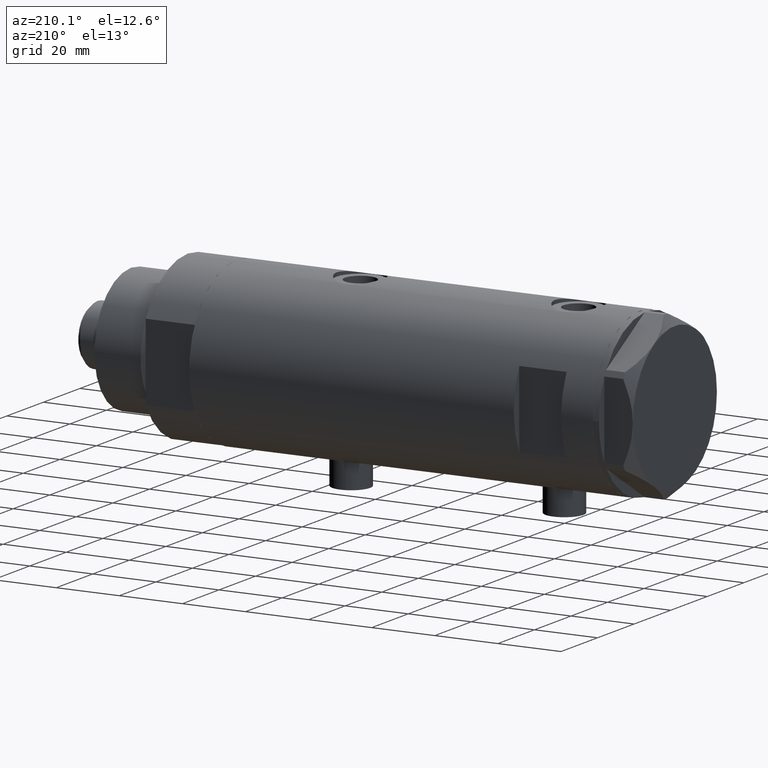
[diagram: clean part render]
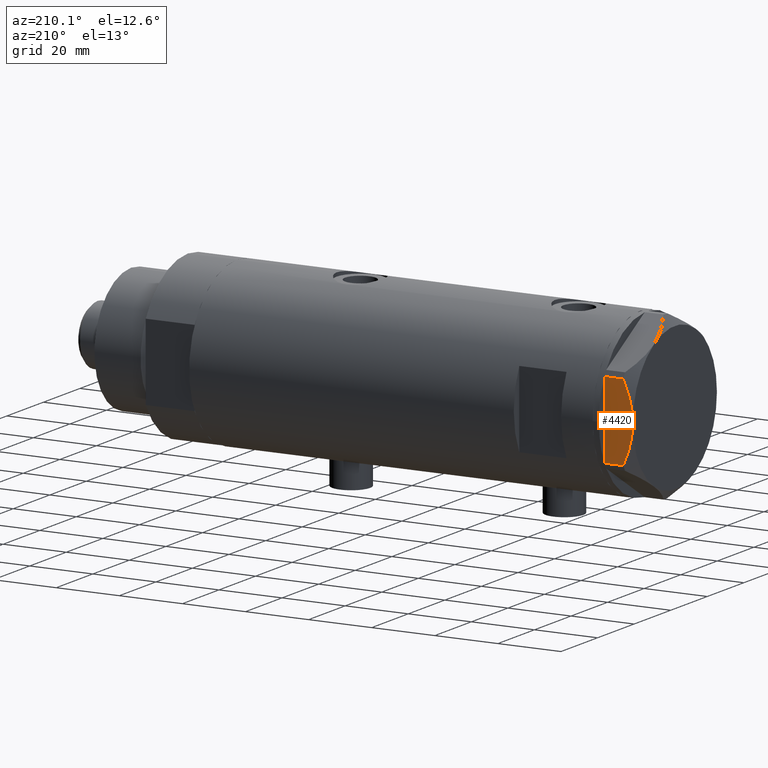
[diagram: same view with one face highlighted and labeled with its STEP entity id]
A machine part, auxiliary view. The second image highlights one B-rep face of the part: STEP entity #4420.
In plain terms, the highlighted planar face has unit normal (0, -1, 0).
Its self-contained STEP definition (entity closure, byte-faithful):
#39 = VERTEX_POINT ( 'NONE', #3713 ) ;
#68 = CARTESIAN_POINT ( 'NONE',  ( 22.99999999999997513, -2.122900714017905699, 9.000000000000095923 ) ) ;
#220 = CARTESIAN_POINT ( 'NONE',  ( 22.99999999999985079, 9.734726261263462632, 7.028924700095659617 ) ) ;
#221 = LINE ( 'NONE', #2078, #4079 ) ;
#243 = CARTESIAN_POINT ( 'NONE',  ( 22.99999999999990052, 5.228918809624284236, 8.433337033849852560 ) ) ;
#264 = CARTESIAN_POINT ( 'NONE',  ( 22.99999999999982947, 11.68282849742352525, 6.206372352695418648 ) ) ;
#283 = VERTEX_POINT ( 'NONE', #3665 ) ;
#288 = LINE ( 'NONE', #3619, #1708 ) ;
#411 = VERTEX_POINT ( 'NONE', #3017 ) ;
#436 = CARTESIAN_POINT ( 'NONE',  ( 23.00000000000002132, -6.734330413511252722, 8.039389741252669808 ) ) ;
#445 = ORIENTED_EDGE ( 'NONE', *, *, #2348, .T. ) ;
#490 = EDGE_CURVE ( 'NONE', #283, #2627, #568, .T. ) ;
#568 = B_SPLINE_CURVE_WITH_KNOTS ( 'NONE', 3,
 ( #4506, #1540, #3043, #820, #2313, #739, #436, #3098, #68, #1980 ),
 .UNSPECIFIED., .F., .F.,
 ( 4, 2, 2, 2, 4 ),
 ( 0.03516523594057417712, 0.03831677594541235687, 0.03989254594783144675, 0.04146831595025053663, 0.04777139595992689614 ),
 .UNSPECIFIED. ) ;
#644 = CARTESIAN_POINT ( 'NONE',  ( 22.99999999999990763, 4.203926054642127319, 8.641681223122510858 ) ) ;
#649 = VERTEX_POINT ( 'NONE', #3893 ) ;
#719 = LINE ( 'NONE', #2211, #1391 ) ;
#739 = CARTESIAN_POINT ( 'NONE',  ( 23.00000000000002842, -7.239756182922028493, 7.892186063422852449 ) ) ;
#744 = LINE ( 'NONE', #2973, #2106 ) ;
#820 = CARTESIAN_POINT ( 'NONE',  ( 23.00000000000004263, -8.748091966971204059, 7.396818978284578350 ) ) ;
#825 = DIRECTION ( 'NONE',  ( 0.000000000000000000, 0.000000000000000000, 1.000000000000000000 ) ) ;
#830 = DIRECTION ( 'NONE',  ( 1.032024811306395780E-14, -1.000000000000000000, 0.000000000000000000 ) ) ;
#982 = CARTESIAN_POINT ( 'NONE',  ( 22.99999999999995026, 2.373657066004705010E-13, 9.000000000000000000 ) ) ;
#1190 = DIRECTION ( 'NONE',  ( -1.032024811306395780E-14, 1.000000000000000000, 0.000000000000000000 ) ) ;
#1249 = FACE_OUTER_BOUND ( 'NONE', #2850, .T. ) ;
#1287 = ORIENTED_EDGE ( 'NONE', *, *, #1553, .F. ) ;
#1294 = CARTESIAN_POINT ( 'NONE',  ( 22.99999999999982236, 12.15905619136164262, 5.983800287807618190 ) ) ;
#1391 = VECTOR ( 'NONE', #3714, 1000.000000000000000 ) ;
#1540 = CARTESIAN_POINT ( 'NONE',  ( 23.00000000000006395, -11.20825071633898240, 6.428173306378455187 ) ) ;
#1553 = EDGE_CURVE ( 'NONE', #2627, #649, #3833, .T. ) ;
#1708 = VECTOR ( 'NONE', #3982, 1000.000000000000000 ) ;
#1745 = CARTESIAN_POINT ( 'NONE',  ( 22.99999999999986500, 8.252113629125430450, 7.581642062680224115 ) ) ;
#1980 = CARTESIAN_POINT ( 'NONE',  ( 22.99999999999995026, 2.373657066004705010E-13, 9.000000000000000000 ) ) ;
#2009 = CARTESIAN_POINT ( 'NONE',  ( 23.00000000000007461, -12.15905619136115590, 0.000000000000000000 ) ) ;
#2011 = VERTEX_POINT ( 'NONE', #2009 ) ;
#2078 = CARTESIAN_POINT ( 'NONE',  ( 23.00000000000008527, -13.27905619136115867, 0.000000000000000000 ) ) ;
#2106 = VECTOR ( 'NONE', #1190, 1000.000000000000000 ) ;
#2211 = CARTESIAN_POINT ( 'NONE',  ( 23.00000000000008527, -13.27905619136115867, 0.000000000000000000 ) ) ;
#2216 = CARTESIAN_POINT ( 'NONE',  ( 22.99999999999995026, 2.373657066004705010E-13, 9.000000000000000000 ) ) ;
#2253 = ORIENTED_EDGE ( 'NONE', *, *, #3217, .T. ) ;
#2313 = CARTESIAN_POINT ( 'NONE',  ( 23.00000000000003197, -8.246028007352183664, 7.571131808646910599 ) ) ;
#2348 = EDGE_CURVE ( 'NONE', #39, #649, #3422, .T. ) ;
#2362 = DIRECTION ( 'NONE',  ( -1.032024811306395780E-14, 1.000000000000000000, 0.000000000000000000 ) ) ;
#2481 = CARTESIAN_POINT ( 'NONE',  ( 22.99999999999993960, 1.063773509315896648, 8.981438083606837708 ) ) ;
#2506 = AXIS2_PLACEMENT_3D ( 'NONE', #4568, #2747, #830 ) ;
#2569 = EDGE_CURVE ( 'NONE', #2011, #3741, #221, .T. ) ;
#2627 = VERTEX_POINT ( 'NONE', #2216 ) ;
#2747 = DIRECTION ( 'NONE',  ( -1.000000000000000000, -1.032024811306395780E-14, 0.000000000000000000 ) ) ;
#2812 = CARTESIAN_POINT ( 'NONE',  ( 22.99999999999992539, 2.119709279062085727, 8.908535212173203988 ) ) ;
#2850 = EDGE_LOOP ( 'NONE', ( #3864, #2253, #3761, #4165, #4110, #445, #1287 ) ) ;
#2915 = EDGE_CURVE ( 'NONE', #411, #39, #744, .T. ) ;
#2973 = CARTESIAN_POINT ( 'NONE',  ( 23.00000000000008527, -13.27905619136115867, 0.000000000000000000 ) ) ;
#3017 = CARTESIAN_POINT ( 'NONE',  ( 22.99999999999982592, 12.12435565298247653, 0.000000000000000000 ) ) ;
#3043 = CARTESIAN_POINT ( 'NONE',  ( 23.00000000000005684, -10.23890159976104641, 6.840812428290920622 ) ) ;
#3053 = CARTESIAN_POINT ( 'NONE',  ( 22.99999999999982236, 12.15905619136163729, 9.000000000000000000 ) ) ;
#3098 = CARTESIAN_POINT ( 'NONE',  ( 22.99999999999999289, -4.194757081058811288, 8.703000351525204792 ) ) ;
#3217 = EDGE_CURVE ( 'NONE', #283, #2011, #288, .T. ) ;
#3225 = CARTESIAN_POINT ( 'NONE',  ( 22.99999999999984368, 11.20155944044832630, 6.421102682632754188 ) ) ;
#3422 = LINE ( 'NONE', #3053, #3928 ) ;
#3495 = EDGE_CURVE ( 'NONE', #3741, #411, #719, .T. ) ;
#3619 = CARTESIAN_POINT ( 'NONE',  ( 23.00000000000007461, -12.15905619136115590, 9.000000000000000000 ) ) ;
#3644 = CARTESIAN_POINT ( 'NONE',  ( 22.99999999999983658, 10.22738952213810926, 6.832470313674774864 ) ) ;
#3665 = CARTESIAN_POINT ( 'NONE',  ( 23.00000000000007461, -12.15905619136115412, 5.983800287807623519 ) ) ;
#3713 = CARTESIAN_POINT ( 'NONE',  ( 22.99999999999982236, 12.15905619136163729, 0.000000000000000000 ) ) ;
#3714 = DIRECTION ( 'NONE',  ( -1.032024811306395780E-14, 1.000000000000000000, 0.000000000000000000 ) ) ;
#3741 = VERTEX_POINT ( 'NONE', #3955 ) ;
#3761 = ORIENTED_EDGE ( 'NONE', *, *, #2569, .T. ) ;
#3833 = B_SPLINE_CURVE_WITH_KNOTS ( 'NONE', 3,
 ( #982, #3947, #2481, #2812, #4347, #644, #243, #4300, #1745, #220, #3644, #3225, #264, #1294 ),
 .UNSPECIFIED., .F., .F.,
 ( 4, 2, 2, 2, 2, 2, 4 ),
 ( 0.04777139595992689614, 0.04934380568070229067, 0.05091621540147768521, 0.05406103484302848122, 0.05720585428457927030, 0.05877826400535466483, 0.06035067372613005937 ),
 .UNSPECIFIED. ) ;
#3864 = ORIENTED_EDGE ( 'NONE', *, *, #490, .F. ) ;
#3893 = CARTESIAN_POINT ( 'NONE',  ( 22.99999999999982236, 12.15905619136164262, 5.983800287807618190 ) ) ;
#3928 = VECTOR ( 'NONE', #825, 1000.000000000000000 ) ;
#3947 = CARTESIAN_POINT ( 'NONE',  ( 22.99999999999994671, 0.5295934231899334099, 9.000000000000095923 ) ) ;
#3955 = CARTESIAN_POINT ( 'NONE',  ( 23.00000000000007461, -12.12435565298200224, 0.000000000000000000 ) ) ;
#3982 = DIRECTION ( 'NONE',  ( 0.000000000000000000, 0.000000000000000000, -1.000000000000000000 ) ) ;
#4079 = VECTOR ( 'NONE', #2362, 1000.000000000000000 ) ;
#4110 = ORIENTED_EDGE ( 'NONE', *, *, #2915, .T. ) ;
#4165 = ORIENTED_EDGE ( 'NONE', *, *, #3495, .T. ) ;
#4300 = CARTESIAN_POINT ( 'NONE',  ( 22.99999999999987921, 7.253003311474552461, 7.903276810347635184 ) ) ;
#4347 = CARTESIAN_POINT ( 'NONE',  ( 22.99999999999992184, 2.643615312305318099, 8.854304560636265364 ) ) ;
#4420 = ADVANCED_FACE ( 'NONE', ( #1249 ), #4617, .F. ) ;
#4506 = CARTESIAN_POINT ( 'NONE',  ( 23.00000000000007461, -12.15905619136115412, 5.983800287807623519 ) ) ;
#4568 = CARTESIAN_POINT ( 'NONE',  ( 23.00000000000008527, -13.27905619136115867, 9.000000000000000000 ) ) ;
#4617 = PLANE ( 'NONE',  #2506 ) ;